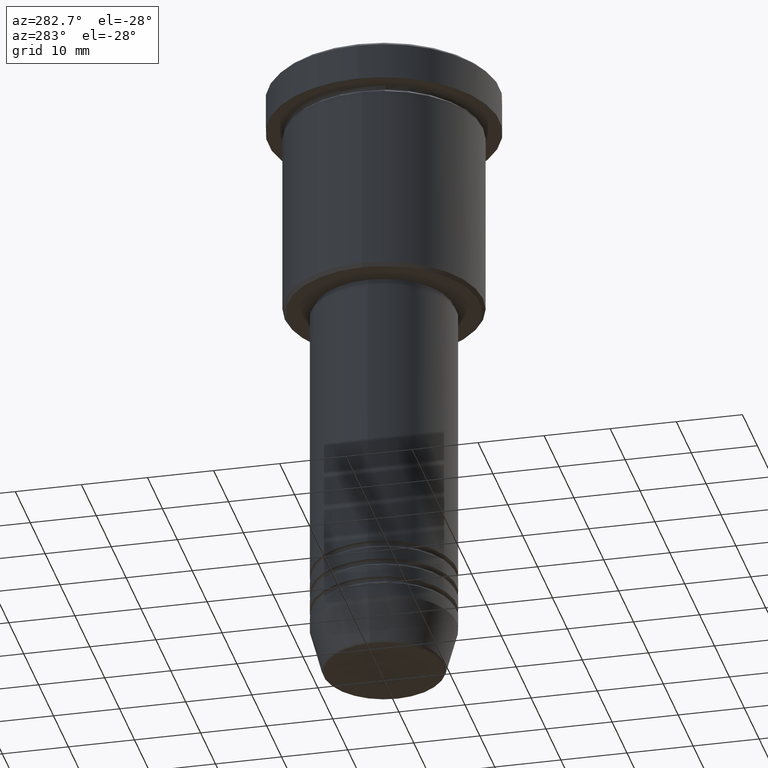
[diagram: clean part render]
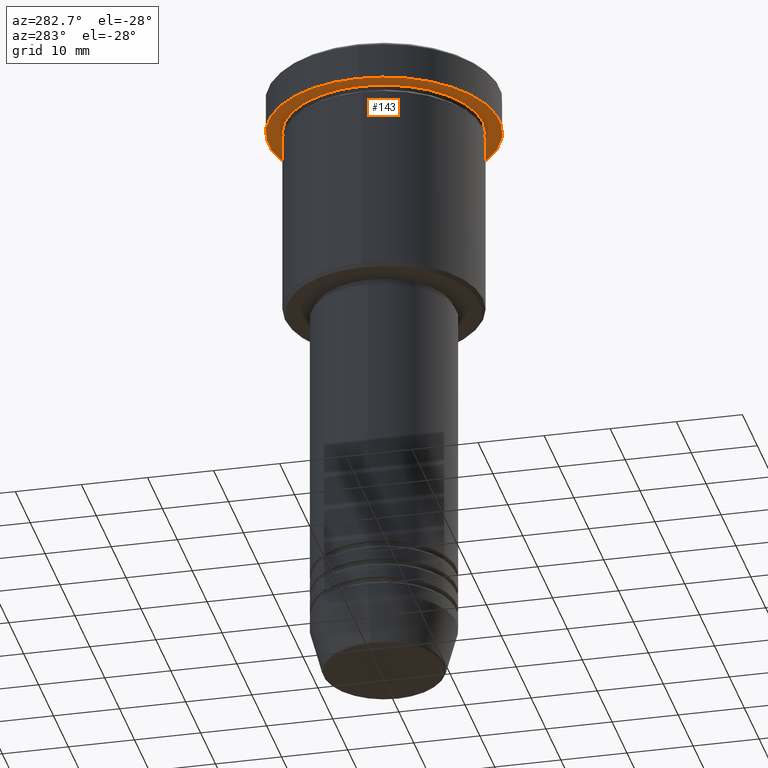
[diagram: same view with one face highlighted and labeled with its STEP entity id]
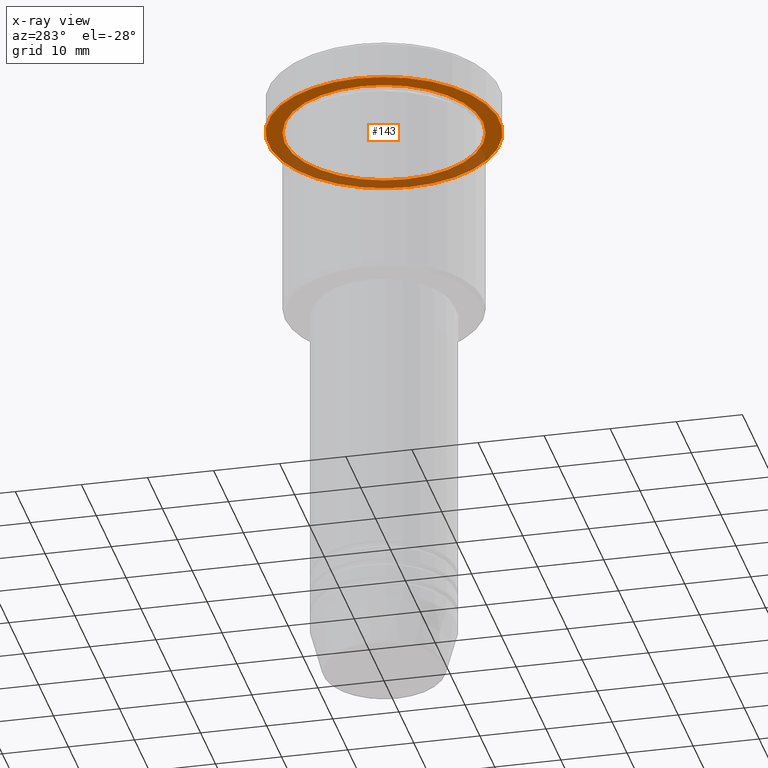
[diagram: x-ray of the same camera — body ghosted, the highlighted face saturated]
A machine part, auxiliary view. The second image highlights one B-rep face of the part: STEP entity #143.
The next image is the same camera in x-ray: the body ghosted, the highlighted face saturated — about 36% of this face is hidden behind the body in this view.
In plain terms, the highlighted planar face has unit normal (0, 0, -1).
Its self-contained STEP definition (entity closure, byte-faithful):
#10 = CIRCLE ( 'NONE', #476, 17.50000000000000000 ) ;
#30 = PLANE ( 'NONE',  #1079 ) ;
#46 = VERTEX_POINT ( 'NONE', #951 ) ;
#50 = CIRCLE ( 'NONE', #444, 15.00000000000000000 ) ;
#70 = AXIS2_PLACEMENT_3D ( 'NONE', #796, #161, #877 ) ;
#131 = FACE_OUTER_BOUND ( 'NONE', #315, .T. ) ;
#140 = ORIENTED_EDGE ( 'NONE', *, *, #278, .T. ) ;
#142 = CIRCLE ( 'NONE', #694, 17.50000000000000000 ) ;
#143 = ADVANCED_FACE ( 'NONE', ( #582, #131 ), #30, .T. ) ;
#161 = DIRECTION ( 'NONE',  ( -0.000000000000000000, -0.000000000000000000, 1.000000000000000000 ) ) ;
#193 = ORIENTED_EDGE ( 'NONE', *, *, #1012, .F. ) ;
#203 = CARTESIAN_POINT ( 'NONE',  ( 17.50000000000000000, 0.000000000000000000, -5.999999999999995559 ) ) ;
#211 = EDGE_CURVE ( 'NONE', #901, #819, #10, .T. ) ;
#278 = EDGE_CURVE ( 'NONE', #1160, #46, #50, .T. ) ;
#298 = DIRECTION ( 'NONE',  ( -0.000000000000000000, -0.000000000000000000, 1.000000000000000000 ) ) ;
#315 = EDGE_LOOP ( 'NONE', ( #1007, #193 ) ) ;
#318 = DIRECTION ( 'NONE',  ( -0.000000000000000000, -0.000000000000000000, 1.000000000000000000 ) ) ;
#369 = EDGE_LOOP ( 'NONE', ( #140, #884 ) ) ;
#401 = CARTESIAN_POINT ( 'NONE',  ( 0.000000000000000000, 17.50000000000000000, -5.999999999999995559 ) ) ;
#414 = DIRECTION ( 'NONE',  ( 1.000000000000000000, 0.000000000000000000, 0.000000000000000000 ) ) ;
#443 = CARTESIAN_POINT ( 'NONE',  ( -17.50000000000000000, 2.143131898507868248E-15, -5.999999999999995559 ) ) ;
#444 = AXIS2_PLACEMENT_3D ( 'NONE', #1138, #318, #517 ) ;
#476 = AXIS2_PLACEMENT_3D ( 'NONE', #871, #703, #972 ) ;
#503 = DIRECTION ( 'NONE',  ( -1.000000000000000000, 0.000000000000000000, -0.000000000000000000 ) ) ;
#517 = DIRECTION ( 'NONE',  ( -1.000000000000000000, 0.000000000000000000, 0.000000000000000000 ) ) ;
#547 = CARTESIAN_POINT ( 'NONE',  ( -15.00000000000000000, 0.000000000000000000, -5.999999999999994671 ) ) ;
#582 = FACE_BOUND ( 'NONE', #369, .T. ) ;
#694 = AXIS2_PLACEMENT_3D ( 'NONE', #1116, #298, #414 ) ;
#703 = DIRECTION ( 'NONE',  ( -0.000000000000000000, -0.000000000000000000, 1.000000000000000000 ) ) ;
#711 = EDGE_CURVE ( 'NONE', #46, #1160, #841, .T. ) ;
#796 = CARTESIAN_POINT ( 'NONE',  ( 0.000000000000000000, 0.000000000000000000, -5.999999999999995559 ) ) ;
#819 = VERTEX_POINT ( 'NONE', #443 ) ;
#841 = CIRCLE ( 'NONE', #70, 15.00000000000000000 ) ;
#871 = CARTESIAN_POINT ( 'NONE',  ( 0.000000000000000000, 0.000000000000000000, -5.999999999999995559 ) ) ;
#877 = DIRECTION ( 'NONE',  ( -1.000000000000000000, 0.000000000000000000, 0.000000000000000000 ) ) ;
#884 = ORIENTED_EDGE ( 'NONE', *, *, #711, .T. ) ;
#901 = VERTEX_POINT ( 'NONE', #203 ) ;
#951 = CARTESIAN_POINT ( 'NONE',  ( 15.00000000000000000, 1.836970198721029589E-15, -5.999999999999994671 ) ) ;
#972 = DIRECTION ( 'NONE',  ( 1.000000000000000000, 0.000000000000000000, 0.000000000000000000 ) ) ;
#1007 = ORIENTED_EDGE ( 'NONE', *, *, #211, .F. ) ;
#1012 = EDGE_CURVE ( 'NONE', #819, #901, #142, .T. ) ;
#1044 = DIRECTION ( 'NONE',  ( 0.000000000000000000, 0.000000000000000000, -1.000000000000000000 ) ) ;
#1079 = AXIS2_PLACEMENT_3D ( 'NONE', #401, #1044, #503 ) ;
#1116 = CARTESIAN_POINT ( 'NONE',  ( 0.000000000000000000, 0.000000000000000000, -5.999999999999995559 ) ) ;
#1138 = CARTESIAN_POINT ( 'NONE',  ( 0.000000000000000000, 0.000000000000000000, -5.999999999999995559 ) ) ;
#1160 = VERTEX_POINT ( 'NONE', #547 ) ;